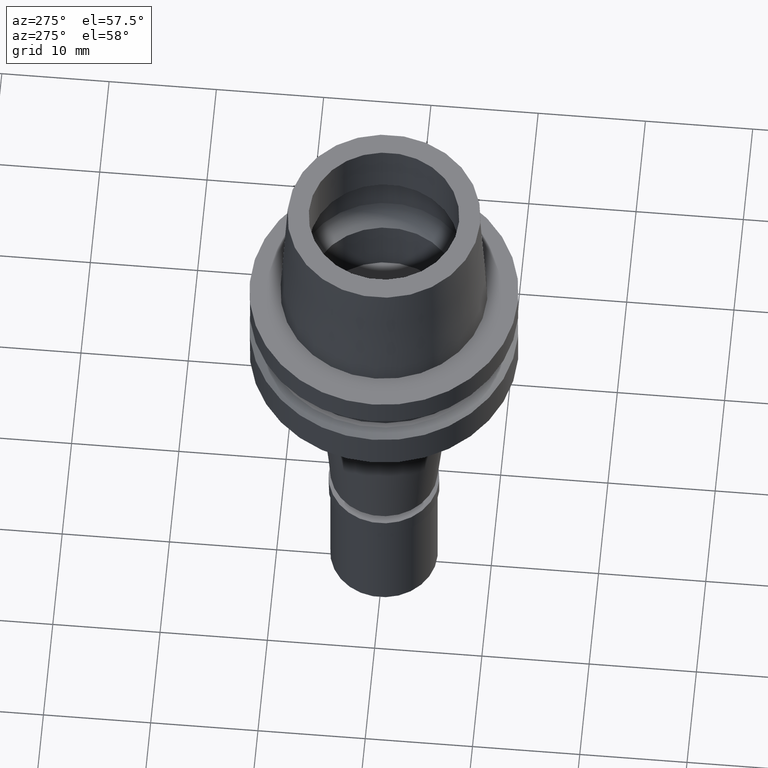
[diagram: clean part render]
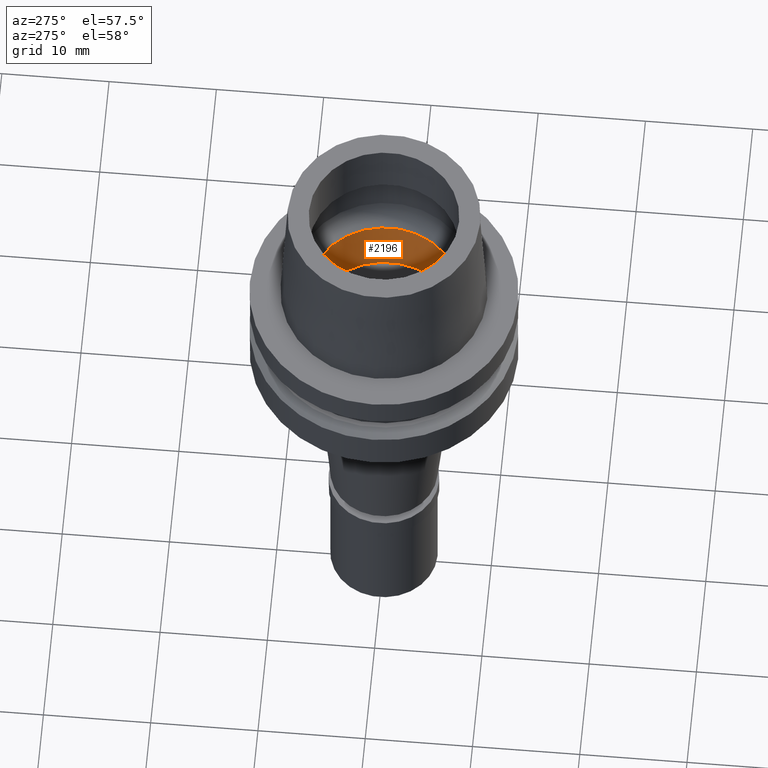
[diagram: same view with one face highlighted and labeled with its STEP entity id]
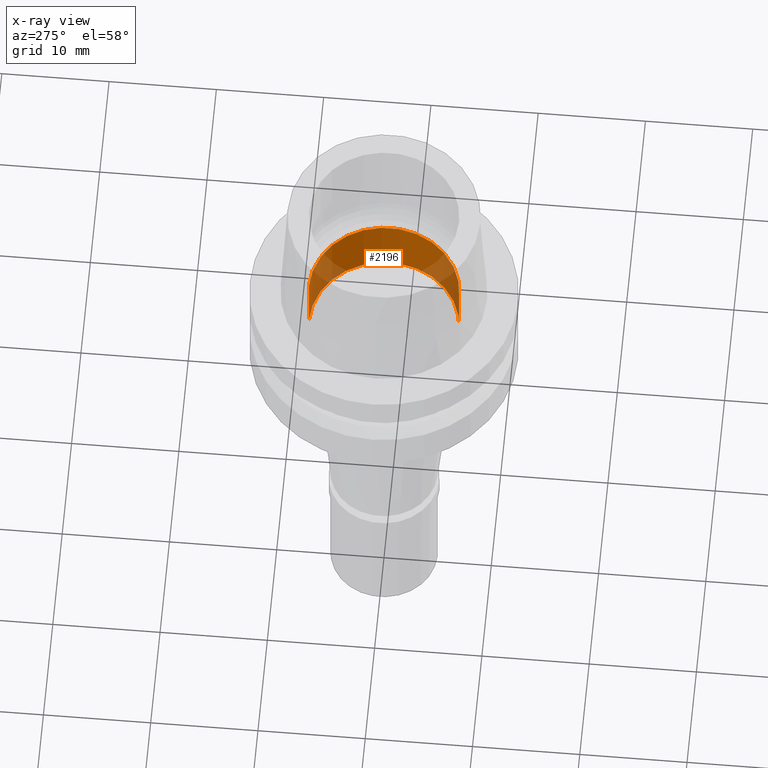
[diagram: x-ray of the same camera — body ghosted, the highlighted face saturated]
A machine part, auxiliary view. The second image highlights one B-rep face of the part: STEP entity #2196.
The next image is the same camera in x-ray: the body ghosted, the highlighted face saturated — about 33% of this face is hidden behind the body in this view.
In plain terms, the highlighted cylindrical surface (partial cylindrical patch) has radius 7 mm, axis along (0, 0, 1).
Its self-contained STEP definition (entity closure, byte-faithful):
#186 = CYLINDRICAL_SURFACE ( 'NONE', #1790, 7.000000000000000000 ) ;
#195 = DIRECTION ( 'NONE',  ( 0.0000000000000000000, 0.0000000000000000000, 1.000000000000000000 ) ) ;
#229 = CARTESIAN_POINT ( 'NONE',  ( 0.0000000000000000000, 0.0000000000000000000, 9.237055564880999494E-14 ) ) ;
#254 = VERTEX_POINT ( 'NONE', #2373 ) ;
#289 = DIRECTION ( 'NONE',  ( 0.0000000000000000000, 0.0000000000000000000, 1.000000000000000000 ) ) ;
#318 = EDGE_LOOP ( 'NONE', ( #1931, #1374, #955, #2237 ) ) ;
#402 = DIRECTION ( 'NONE',  ( 0.0000000000000000000, 1.000000000000000000, 0.0000000000000000000 ) ) ;
#440 = VERTEX_POINT ( 'NONE', #1772 ) ;
#494 = CARTESIAN_POINT ( 'NONE',  ( 0.0000000000000000000, 7.000000000000000000, -5.950000000000000178 ) ) ;
#670 = DIRECTION ( 'NONE',  ( 0.0000000000000000000, -1.000000000000000000, 0.0000000000000000000 ) ) ;
#743 = LINE ( 'NONE', #494, #1953 ) ;
#823 = FACE_OUTER_BOUND ( 'NONE', #318, .T. ) ;
#878 = AXIS2_PLACEMENT_3D ( 'NONE', #229, #1082, #670 ) ;
#955 = ORIENTED_EDGE ( 'NONE', *, *, #1534, .T. ) ;
#1014 = CIRCLE ( 'NONE', #878, 7.000000000000000000 ) ;
#1057 = CIRCLE ( 'NONE', #1874, 7.000000000000000000 ) ;
#1082 = DIRECTION ( 'NONE',  ( 0.0000000000000000000, 0.0000000000000000000, 1.000000000000000000 ) ) ;
#1374 = ORIENTED_EDGE ( 'NONE', *, *, #1630, .T. ) ;
#1534 = EDGE_CURVE ( 'NONE', #440, #2075, #1014, .T. ) ;
#1546 = CARTESIAN_POINT ( 'NONE',  ( 0.0000000000000000000, 7.000000000000000000, -5.950000000000000178 ) ) ;
#1617 = DIRECTION ( 'NONE',  ( 0.0000000000000000000, 1.000000000000000000, 0.0000000000000000000 ) ) ;
#1630 = EDGE_CURVE ( 'NONE', #254, #440, #1720, .T. ) ;
#1646 = CARTESIAN_POINT ( 'NONE',  ( 0.0000000000000000000, 0.0000000000000000000, -44.01500000000000057 ) ) ;
#1720 = LINE ( 'NONE', #2289, #2380 ) ;
#1762 = CARTESIAN_POINT ( 'NONE',  ( 0.0000000000000000000, 7.000000000000000000, 7.815970093360999808E-14 ) ) ;
#1772 = CARTESIAN_POINT ( 'NONE',  ( 0.0000000000000000000, -7.000000000000000000, 7.815970093360999808E-14 ) ) ;
#1790 = AXIS2_PLACEMENT_3D ( 'NONE', #1646, #195, #402 ) ;
#1874 = AXIS2_PLACEMENT_3D ( 'NONE', #2236, #2197, #1617 ) ;
#1931 = ORIENTED_EDGE ( 'NONE', *, *, #2662, .T. ) ;
#1952 = EDGE_CURVE ( 'NONE', #2069, #2075, #743, .T. ) ;
#1953 = VECTOR ( 'NONE', #289, 1000.000000000000000 ) ;
#2069 = VERTEX_POINT ( 'NONE', #1546 ) ;
#2075 = VERTEX_POINT ( 'NONE', #1762 ) ;
#2196 = ADVANCED_FACE ( 'NONE', ( #823 ), #186, .F. ) ;
#2197 = DIRECTION ( 'NONE',  ( 0.0000000000000000000, 0.0000000000000000000, -1.000000000000000000 ) ) ;
#2236 = CARTESIAN_POINT ( 'NONE',  ( 0.0000000000000000000, 0.0000000000000000000, -5.950000000000000178 ) ) ;
#2237 = ORIENTED_EDGE ( 'NONE', *, *, #1952, .F. ) ;
#2289 = CARTESIAN_POINT ( 'NONE',  ( 0.0000000000000000000, -7.000000000000000000, -5.950000000000000178 ) ) ;
#2373 = CARTESIAN_POINT ( 'NONE',  ( 0.0000000000000000000, -7.000000000000000000, -5.950000000000000178 ) ) ;
#2380 = VECTOR ( 'NONE', #2502, 1000.000000000000000 ) ;
#2502 = DIRECTION ( 'NONE',  ( 0.0000000000000000000, 0.0000000000000000000, 1.000000000000000000 ) ) ;
#2662 = EDGE_CURVE ( 'NONE', #2069, #254, #1057, .T. ) ;